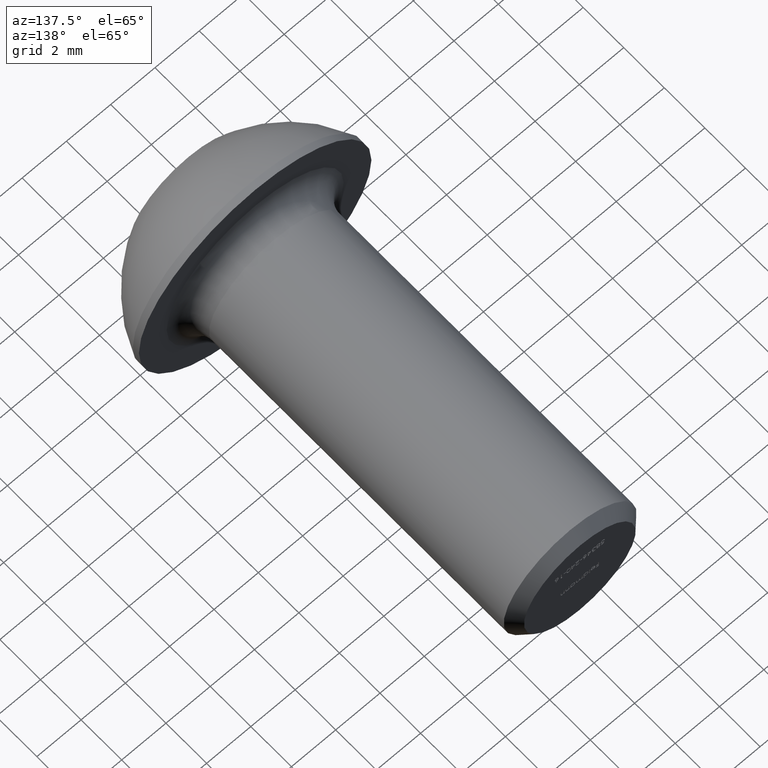
[diagram: clean part render]
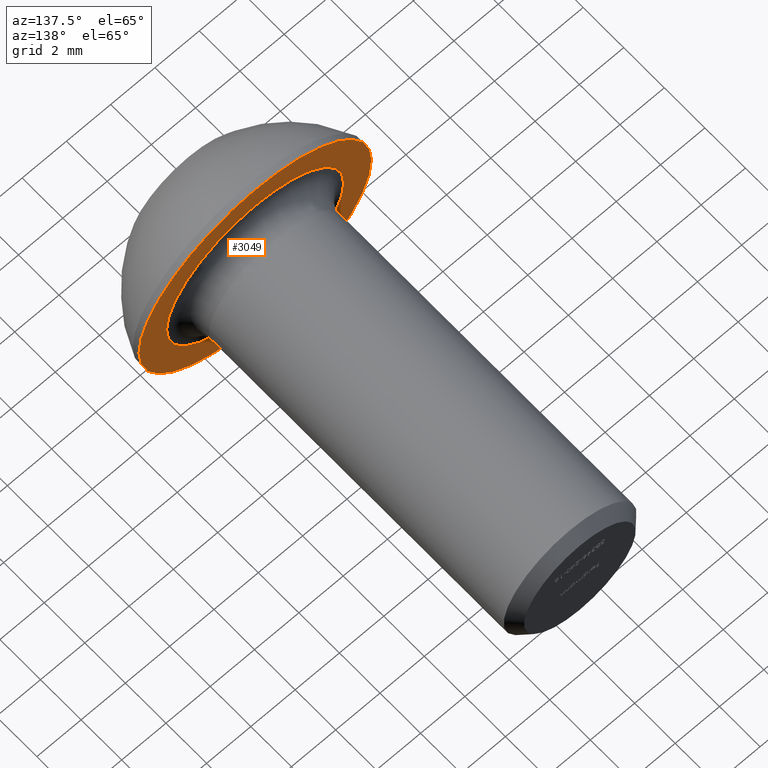
[diagram: same view with one face highlighted and labeled with its STEP entity id]
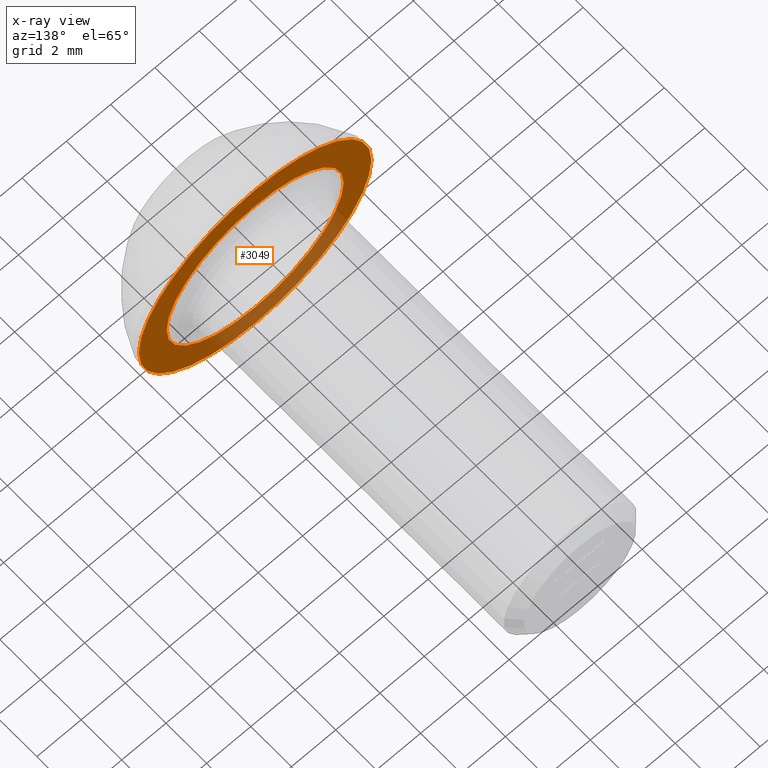
[diagram: x-ray of the same camera — body ghosted, the highlighted face saturated]
A machine part, auxiliary view. The second image highlights one B-rep face of the part: STEP entity #3049.
The next image is the same camera in x-ray: the body ghosted, the highlighted face saturated — about 23% of this face is hidden behind the body in this view.
In plain terms, the highlighted planar face has unit normal (0, -1, -0).
Its self-contained STEP definition (entity closure, byte-faithful):
#935 = EDGE_CURVE ( 'NONE', #10040, #10040, #6727, .T. ) ;
#1617 = CIRCLE ( 'NONE', #10134, 3.999999999999997300 ) ;
#1659 = FACE_OUTER_BOUND ( 'NONE', #3033, .T. ) ;
#3033 = EDGE_LOOP ( 'NONE', ( #7823 ) ) ;
#3049 = ADVANCED_FACE ( 'NONE', ( #5750, #1659 ), #10245, .F. ) ;
#3738 = CARTESIAN_POINT ( 'NONE',  ( 0.0000000000000000000, 3.299999999999999800, -3.999999999999997300 ) ) ;
#4437 = AXIS2_PLACEMENT_3D ( 'NONE', #10274, #12680, #7069 ) ;
#4546 = EDGE_CURVE ( 'NONE', #12853, #12853, #1617, .T. ) ;
#5528 = CARTESIAN_POINT ( 'NONE',  ( 2.999999999999999100, 3.299999999999999800, 0.0000000000000000000 ) ) ;
#5750 = FACE_BOUND ( 'NONE', #15137, .T. ) ;
#6727 = CIRCLE ( 'NONE', #4437, 5.249999999999999100 ) ;
#6730 = DIRECTION ( 'NONE',  ( 0.0000000000000000000, -1.000000000000000000, -0.0000000000000000000 ) ) ;
#7069 = DIRECTION ( 'NONE',  ( 0.0000000000000000000, 0.0000000000000000000, -1.000000000000000000 ) ) ;
#7645 = ORIENTED_EDGE ( 'NONE', *, *, #4546, .T. ) ;
#7823 = ORIENTED_EDGE ( 'NONE', *, *, #935, .F. ) ;
#8331 = CARTESIAN_POINT ( 'NONE',  ( 0.0000000000000000000, 3.299999999999999800, 0.0000000000000000000 ) ) ;
#9111 = DIRECTION ( 'NONE',  ( 0.0000000000000000000, 0.0000000000000000000, -1.000000000000000000 ) ) ;
#9667 = CARTESIAN_POINT ( 'NONE',  ( 0.0000000000000000000, 3.299999999999999800, -5.249999999999999100 ) ) ;
#10040 = VERTEX_POINT ( 'NONE', #9667 ) ;
#10134 = AXIS2_PLACEMENT_3D ( 'NONE', #8331, #13093, #10732 ) ;
#10245 = PLANE ( 'NONE',  #11239 ) ;
#10274 = CARTESIAN_POINT ( 'NONE',  ( 0.0000000000000000000, 3.299999999999999800, 0.0000000000000000000 ) ) ;
#10732 = DIRECTION ( 'NONE',  ( 0.0000000000000000000, 0.0000000000000000000, -1.000000000000000000 ) ) ;
#11239 = AXIS2_PLACEMENT_3D ( 'NONE', #5528, #6730, #9111 ) ;
#12680 = DIRECTION ( 'NONE',  ( -0.0000000000000000000, -1.000000000000000000, -0.0000000000000000000 ) ) ;
#12853 = VERTEX_POINT ( 'NONE', #3738 ) ;
#13093 = DIRECTION ( 'NONE',  ( -0.0000000000000000000, -1.000000000000000000, -0.0000000000000000000 ) ) ;
#15137 = EDGE_LOOP ( 'NONE', ( #7645 ) ) ;